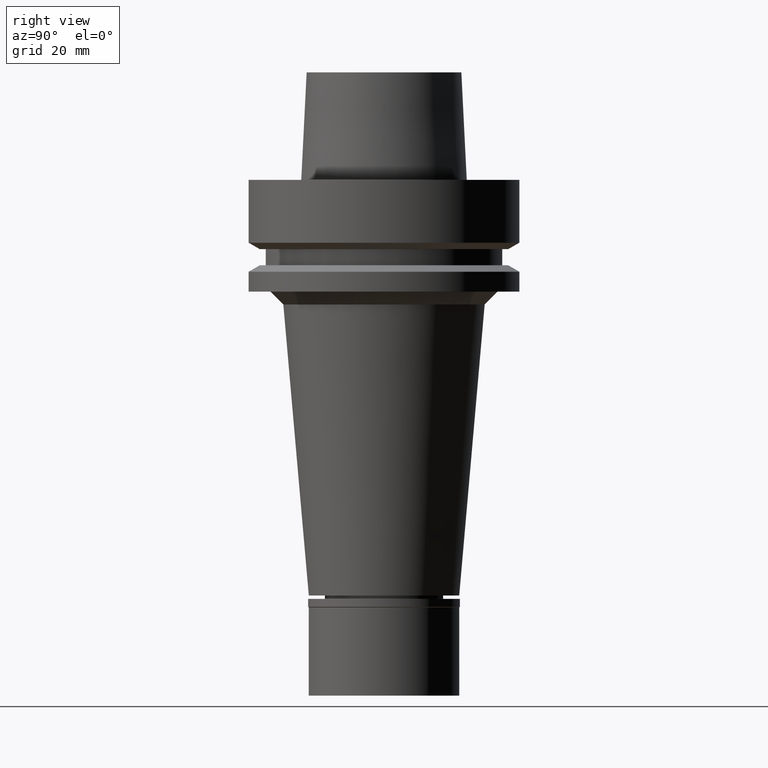
[diagram: clean part render]
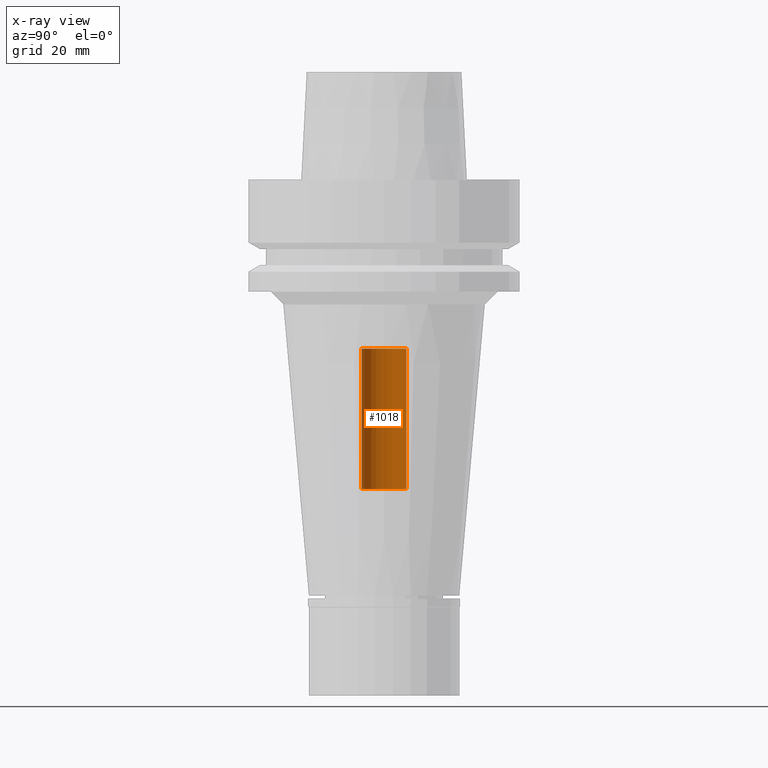
[diagram: x-ray — body ghosted, one internal face saturated and labeled with its STEP entity id]
A machine part, right view, then the same camera in x-ray: the body is ghosted and one INTERNAL B-rep face — a face not visible from any outside direction — is saturated and labeled: STEP entity #1018.
In plain terms, the highlighted cylindrical surface (edge-blend (fillet) strip) has radius 5.2 mm, axis along (0, 0, 1).
Its self-contained STEP definition (entity closure, byte-faithful):
#265 = EDGE_LOOP ( 'NONE', ( #1878, #1652, #846, #406 ) ) ;
#313 = CARTESIAN_POINT ( 'NONE',  ( 0.0000000000000000000, 5.200000000000000178, -72.00000000000000000 ) ) ;
#348 = EDGE_CURVE ( 'NONE', #854, #1989, #1804, .T. ) ;
#396 = VERTEX_POINT ( 'NONE', #950 ) ;
#406 = ORIENTED_EDGE ( 'NONE', *, *, #2505, .T. ) ;
#502 = FACE_OUTER_BOUND ( 'NONE', #265, .T. ) ;
#580 = CIRCLE ( 'NONE', #1739, 5.200000000000000178 ) ;
#610 = DIRECTION ( 'NONE',  ( 0.0000000000000000000, 0.0000000000000000000, -1.000000000000000000 ) ) ;
#695 = DIRECTION ( 'NONE',  ( 0.0000000000000000000, 0.0000000000000000000, 1.000000000000000000 ) ) ;
#769 = CARTESIAN_POINT ( 'NONE',  ( 0.0000000000000000000, 0.0000000000000000000, -120.2150000000000034 ) ) ;
#800 = CARTESIAN_POINT ( 'NONE',  ( 0.0000000000000000000, 0.0000000000000000000, -72.00000000000000000 ) ) ;
#846 = ORIENTED_EDGE ( 'NONE', *, *, #1763, .T. ) ;
#854 = VERTEX_POINT ( 'NONE', #2647 ) ;
#916 = VECTOR ( 'NONE', #695, 1000.000000000000000 ) ;
#950 = CARTESIAN_POINT ( 'NONE',  ( 0.0000000000000000000, 5.200000000000000178, -72.00000000000000000 ) ) ;
#1018 = ADVANCED_FACE ( 'NONE', ( #502 ), #2474, .F. ) ;
#1133 = AXIS2_PLACEMENT_3D ( 'NONE', #2590, #2818, #1718 ) ;
#1245 = EDGE_CURVE ( 'NONE', #1528, #1989, #1356, .T. ) ;
#1356 = CIRCLE ( 'NONE', #1133, 5.200000000000000178 ) ;
#1416 = LINE ( 'NONE', #313, #1792 ) ;
#1528 = VERTEX_POINT ( 'NONE', #1767 ) ;
#1652 = ORIENTED_EDGE ( 'NONE', *, *, #348, .F. ) ;
#1718 = DIRECTION ( 'NONE',  ( 0.0000000000000000000, 1.000000000000000000, 0.0000000000000000000 ) ) ;
#1737 = AXIS2_PLACEMENT_3D ( 'NONE', #769, #2490, #1820 ) ;
#1739 = AXIS2_PLACEMENT_3D ( 'NONE', #800, #610, #1908 ) ;
#1763 = EDGE_CURVE ( 'NONE', #854, #396, #580, .T. ) ;
#1767 = CARTESIAN_POINT ( 'NONE',  ( 0.0000000000000000000, 5.200000000000000178, -39.30000000000000426 ) ) ;
#1792 = VECTOR ( 'NONE', #2071, 1000.000000000000000 ) ;
#1804 = LINE ( 'NONE', #2670, #916 ) ;
#1820 = DIRECTION ( 'NONE',  ( 0.0000000000000000000, 1.000000000000000000, 0.0000000000000000000 ) ) ;
#1878 = ORIENTED_EDGE ( 'NONE', *, *, #1245, .T. ) ;
#1908 = DIRECTION ( 'NONE',  ( 0.0000000000000000000, -1.000000000000000000, 0.0000000000000000000 ) ) ;
#1986 = CARTESIAN_POINT ( 'NONE',  ( 0.0000000000000000000, -5.200000000000000178, -39.30000000000000426 ) ) ;
#1989 = VERTEX_POINT ( 'NONE', #1986 ) ;
#2071 = DIRECTION ( 'NONE',  ( 0.0000000000000000000, 0.0000000000000000000, 1.000000000000000000 ) ) ;
#2474 = CYLINDRICAL_SURFACE ( 'NONE', #1737, 5.200000000000000178 ) ;
#2490 = DIRECTION ( 'NONE',  ( 0.0000000000000000000, 0.0000000000000000000, 1.000000000000000000 ) ) ;
#2505 = EDGE_CURVE ( 'NONE', #396, #1528, #1416, .T. ) ;
#2590 = CARTESIAN_POINT ( 'NONE',  ( 0.0000000000000000000, 0.0000000000000000000, -39.30000000000000426 ) ) ;
#2647 = CARTESIAN_POINT ( 'NONE',  ( 0.0000000000000000000, -5.200000000000000178, -72.00000000000000000 ) ) ;
#2670 = CARTESIAN_POINT ( 'NONE',  ( 0.0000000000000000000, -5.200000000000000178, -72.00000000000000000 ) ) ;
#2818 = DIRECTION ( 'NONE',  ( 0.0000000000000000000, 0.0000000000000000000, 1.000000000000000000 ) ) ;